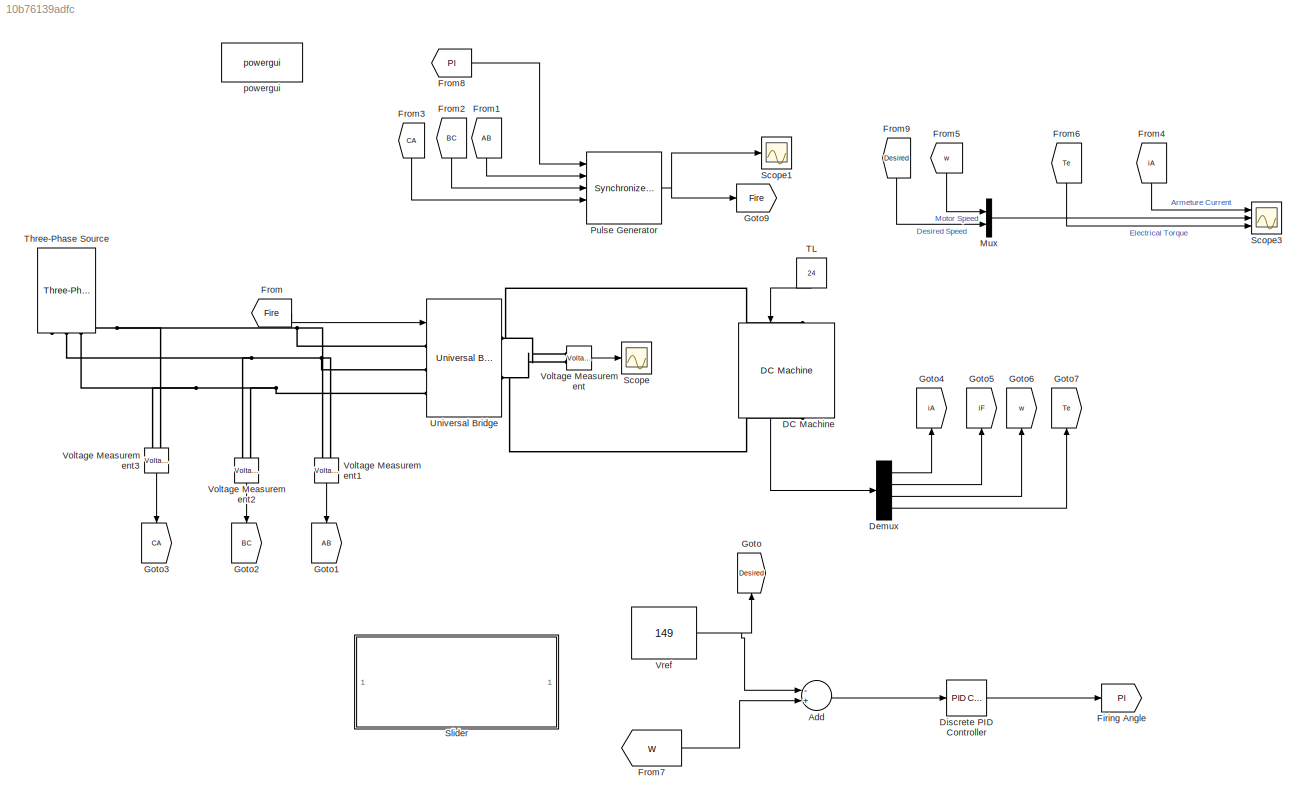
MODEL slx_10b76139adfc
KIND model
CONFIG AbsTol = auto
CONFIG EnableMultiTasking = off
CONFIG FixedStep = auto
CONFIG MaxStep = auto
CONFIG MinStep = auto
CONFIG RelTol = 1e-3
CONFIG SampleTimeConstraint = Unconstrained
CONFIG Solver = FixedStepAuto
CONFIG SolverName = FixedStepAuto
CONFIG StartTime = 0.0
CONFIG StopTime = 40
BLOCK [Sum] Add
  InputSameDT = off
  Inputs = -+
  OutDataTypeStr = Inherit: Inherit via internal rule
  Ports = [2, 1]
  SaturateOnIntegerOverflow = off
BLOCK [Reference] DC Machine  REF=powerlib/Machines/DC Machine
  Ports = [1, 1, 0, 0, 0, 1, 1]
  SourceBlock = powerlib/Machines/DC Machine
  SourceProductBaseCode = PS
  SourceProductName = Simscape Power Systems
  SourceType = DC machine
BLOCK [Demux] Demux
  DisplayOption = bar
  Ports = [1, 4]
BLOCK [Reference] Discrete PID Controller  REF=simulink/Continuous/PID Controller
  Ports = [1, 1]
  SourceBlock = simulink/Continuous/PID Controller
  SourceProductBaseCode = SL
  SourceProductName = Simulink
  SourceType = PID 1dof
BLOCK [Goto] Firing Angle
  GotoTag = PI
BLOCK [From] From
  GotoTag = Fire
BLOCK [From] From1
  GotoTag = AB
BLOCK [From] From2
  GotoTag = BC
BLOCK [From] From3
  GotoTag = CA
BLOCK [From] From4
  GotoTag = iA
BLOCK [From] From5
  GotoTag = w
BLOCK [From] From6
  GotoTag = Te
BLOCK [From] From7
  GotoTag = w
BLOCK [From] From8
  GotoTag = PI
BLOCK [From] From9
  GotoTag = Desired
BLOCK [Goto] Goto
  GotoTag = Desired
BLOCK [Goto] Goto1
  GotoTag = AB
BLOCK [Goto] Goto2
  GotoTag = BC
BLOCK [Goto] Goto3
  GotoTag = CA
BLOCK [Goto] Goto4
  GotoTag = iA
BLOCK [Goto] Goto5
  GotoTag = iF
BLOCK [Goto] Goto6
  GotoTag = w
BLOCK [Goto] Goto7
  GotoTag = Te
BLOCK [Goto] Goto9
  GotoTag = Fire
BLOCK [Mux] Mux
  DisplayOption = bar
  Inputs = 2
  Ports = [2, 1]
BLOCK [Reference] Pulse Generator  REF=powerlib_extras/Control 
Blocks/Synchronized
6-Pulse Generator
  Ports = [5, 1]
  SourceBlock = powerlib_extras/Control \nBlocks/Synchronized\n6-Pulse Generator
  SourceType = Synchronized 6-pulse generator
BLOCK [Scope] Scope
  Floating = off
  NumInputPorts = 1
  Ports = [1]
  ScopeSpecificationString = Simulink.scopes.TimeScopeBlockCfg('CurrentConfiguration', extmgr.ConfigurationSet(extmgr.Configuration('Core','General UI',true),extmgr.Configuration('Core','Source UI',true),extmgr.Configuration('Sources','WiredSimulink',true),extmgr.Configuration('Visuals','Time Domain',true,'SerializedDisplays',{struct('MinYLimReal','-66.89788','MaxYLimReal','629.10344','YLabelReal','','MinYLimMag','0.00000','M...<+1423ch>
BLOCK [Scope] Scope1
  Floating = off
  NumInputPorts = 1
  Ports = [1]
  ScopeSpecificationString = Simulink.scopes.TimeScopeBlockCfg('CurrentConfiguration', extmgr.ConfigurationSet(extmgr.Configuration('Core','General UI',true),extmgr.Configuration('Core','Source UI',true),extmgr.Configuration('Sources','WiredSimulink',true,'DataLoggingVariableName','ScopeData1'),extmgr.Configuration('Visuals','Time Domain',true,'SerializedDisplays',{struct('MinYLimReal','-0.125','MaxYLimReal','1.125','YLabelRe...<+1510ch>
BLOCK [Scope] Scope3
  Floating = off
  NumInputPorts = 3
  Ports = [3]
  ScopeSpecificationString = Simulink.scopes.TimeScopeBlockCfg('CurrentConfiguration', extmgr.ConfigurationSet(extmgr.Configuration('Core','General UI',true,'FigureColor',[0.831372549019608 0.815686274509804 0.784313725490196]),extmgr.Configuration('Core','Source UI',true),extmgr.Configuration('Sources','WiredSimulink',true,'DataLoggingVariableName','ScopeData2'),extmgr.Configuration('Visuals','Time Domain',true,'SerializedDi...<+3429ch>
BLOCK [SubSystem] Slider
  DialogController = hmiCreateDDGDialog
  IsWebBlock = on
  MaskHideContents = on
  Ports = []
  RequestExecContextInheritance = off
BLOCK [Constant] TL
  Value = 24
BLOCK [Reference] Three-Phase Source  REF=powerlib/Electrical
Sources/Three-Phase Source
  Ports = [0, 0, 0, 0, 0, 0, 3]
  SourceBlock = powerlib/Electrical\nSources/Three-Phase Source
  SourceProductBaseCode = PS
  SourceProductName = Simscape Power Systems
  SourceType = Three-Phase Source
BLOCK [Reference] Universal Bridge  REF=powerlib/Power
Electronics/Universal Bridge
  Ports = [1, 0, 0, 0, 0, 3, 2]
  SourceBlock = powerlib/Power\nElectronics/Universal Bridge
  SourceProductBaseCode = PS
  SourceProductName = Simscape Power Systems
  SourceType = Universal Bridge
BLOCK [Reference] Voltage Measurement  REF=powerlib/Measurements/Voltage Measurement
  Ports = [0, 1, 0, 0, 0, 2]
  SourceBlock = powerlib/Measurements/Voltage Measurement
  SourceProductBaseCode = PS
  SourceProductName = Simscape Power Systems
  SourceType = Voltage Measurement
  UserDataPersistent = on
BLOCK [Reference] Voltage Measurement1  REF=powerlib/Measurements/Voltage Measurement
  Ports = [0, 1, 0, 0, 0, 2]
  SourceBlock = powerlib/Measurements/Voltage Measurement
  SourceProductBaseCode = PS
  SourceProductName = Simscape Power Systems
  SourceType = Voltage Measurement
  UserDataPersistent = on
BLOCK [Reference] Voltage Measurement2  REF=powerlib/Measurements/Voltage Measurement
  Ports = [0, 1, 0, 0, 0, 2]
  SourceBlock = powerlib/Measurements/Voltage Measurement
  SourceProductBaseCode = PS
  SourceProductName = Simscape Power Systems
  SourceType = Voltage Measurement
  UserDataPersistent = on
BLOCK [Reference] Voltage Measurement3  REF=powerlib/Measurements/Voltage Measurement
  Ports = [0, 1, 0, 0, 0, 2]
  SourceBlock = powerlib/Measurements/Voltage Measurement
  SourceProductBaseCode = PS
  SourceProductName = Simscape Power Systems
  SourceType = Voltage Measurement
  UserDataPersistent = on
BLOCK [Constant] Vref
  Value = 149
BLOCK [Reference] powergui  REF=powerlib/powergui
  Ports = []
  Priority = 1
  SourceBlock = powerlib/powergui
  SourceProductBaseCode = PS
  SourceProductName = Simscape Power Systems
  SourceType = PSB option menu block
LINE Add:1 -> Discrete PID Controller:1
LINE DC Machine:1 -> Demux:1
LINE Demux:1 -> Goto4:1
LINE Demux:2 -> Goto5:1
LINE Demux:3 -> Goto6:1
LINE Demux:4 -> Goto7:1
LINE Discrete PID Controller:1 -> Firing Angle:1
LINE From1:1 -> Pulse Generator:2
LINE From2:1 -> Pulse Generator:3
LINE From3:1 -> Pulse Generator:4
LINE From4:1 -> Scope3:1
LINE From5:1 -> Mux:1
LINE From6:1 -> Scope3:3
LINE From7:1 -> Add:2
LINE From8:1 -> Pulse Generator:1
LINE From9:1 -> Mux:2
LINE From:1 -> Universal Bridge:1
LINE Mux:1 -> Scope3:2
NET Pulse Generator:1 -> Goto9:1, Scope1:1
LINE TL:1 -> DC Machine:1
LINE Voltage Measurement1:1 -> Goto1:1
LINE Voltage Measurement2:1 -> Goto2:1
LINE Voltage Measurement3:1 -> Goto3:1
LINE Voltage Measurement:1 -> Scope:1
NET Vref:1 -> Add:1, Goto:1
PNET net1: DC Machine:LConn1 -- Universal Bridge:RConn1 -- Voltage Measurement:LConn1
PNET net2: DC Machine:RConn1 -- Universal Bridge:RConn2 -- Voltage Measurement:LConn2
PNET net3: Three-Phase Source:RConn1 -- Universal Bridge:LConn1 -- Voltage Measurement1:LConn1 -- Voltage Measurement3:LConn2
PNET net4: Three-Phase Source:RConn2 -- Universal Bridge:LConn2 -- Voltage Measurement1:LConn2 -- Voltage Measurement2:LConn1
PNET net5: Three-Phase Source:RConn3 -- Universal Bridge:LConn3 -- Voltage Measurement2:LConn2 -- Voltage Measurement3:LConn1
note: NET lines group one-source signal fan-out (src -> all destinations, sorted); 1:1 wires keep LINE; PNET lines group multi-terminal physical nets as a canonical sorted terminal list (undirected conserving connections); 2-terminal nets keep the pairwise PLINE form
